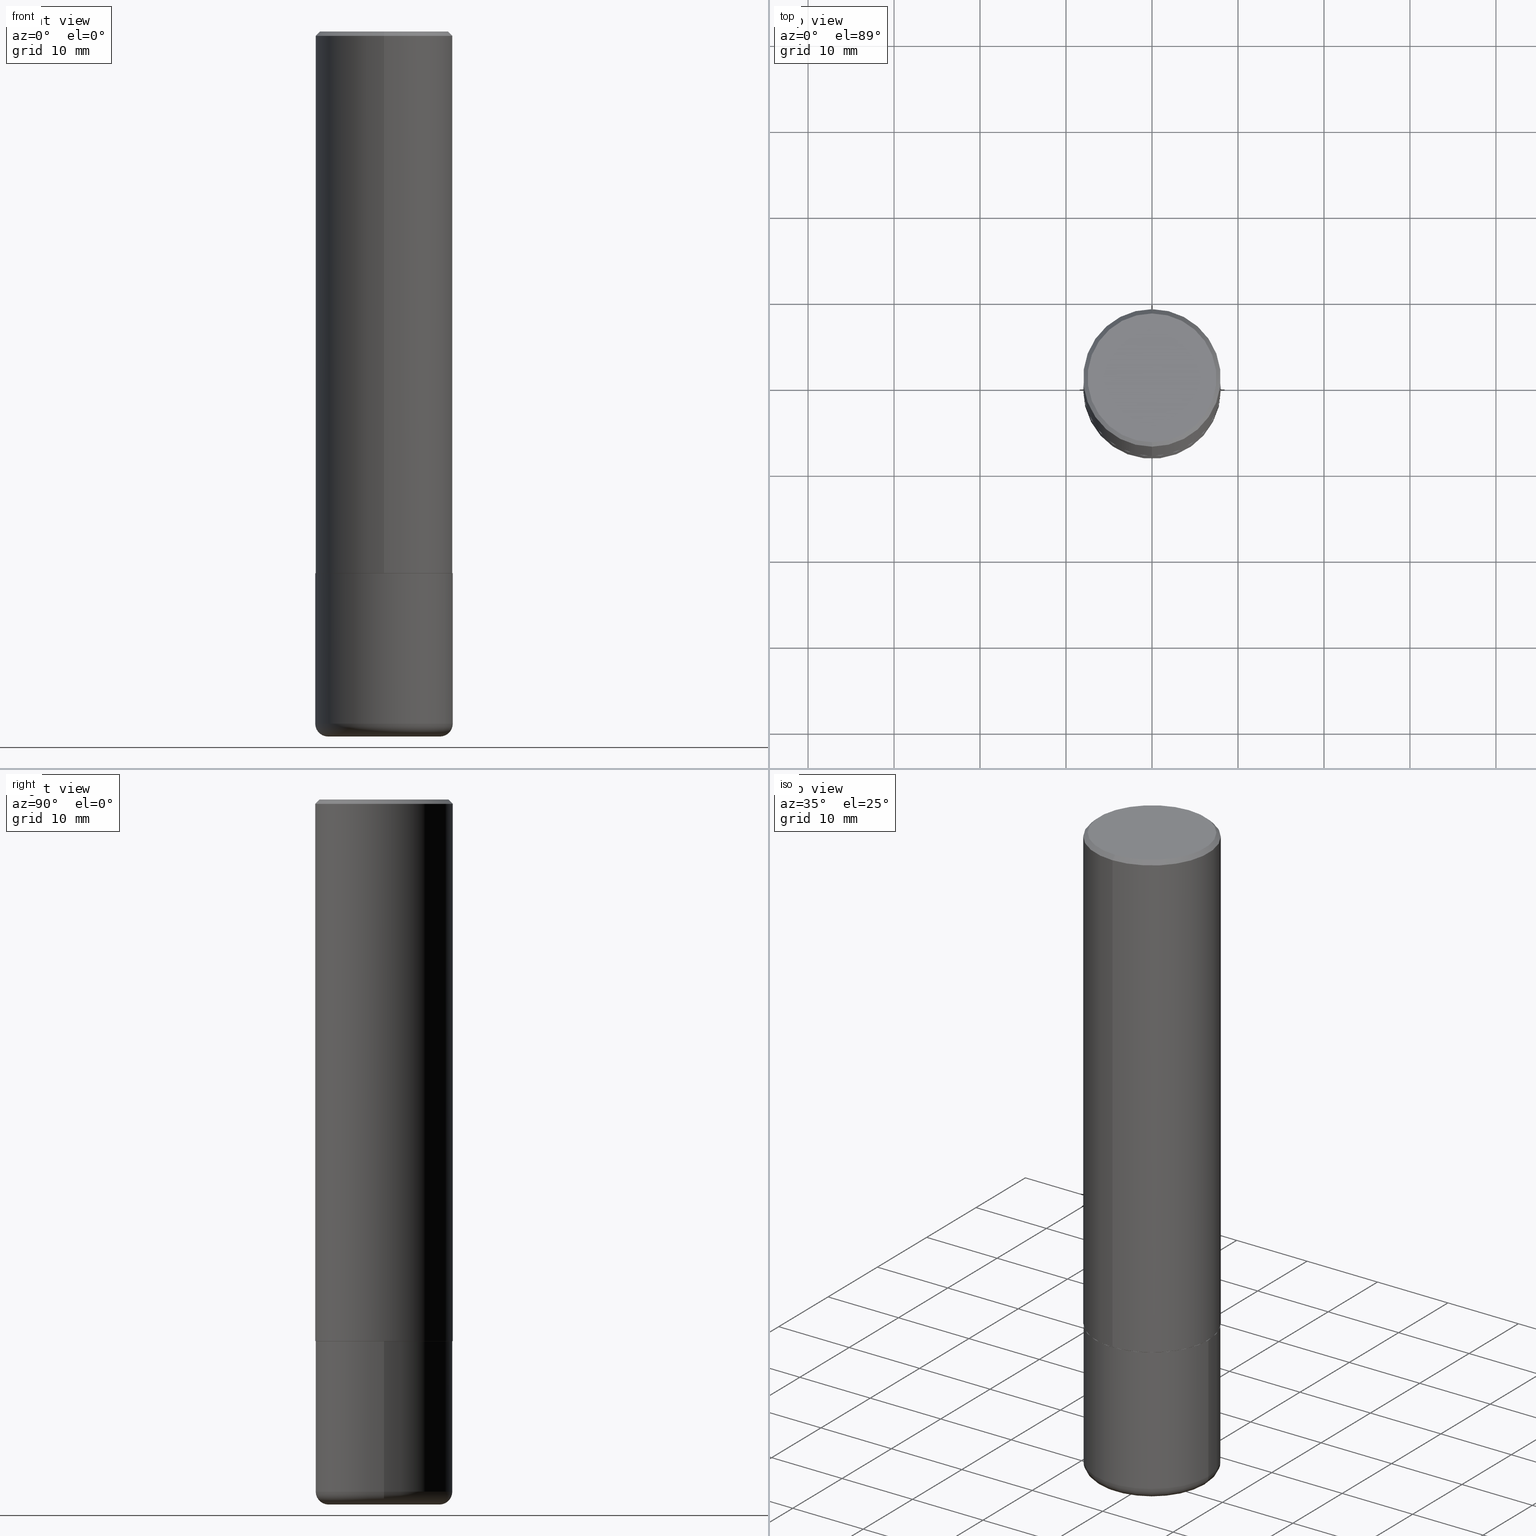
[diagram: canonical four-view strip — front | top / right | iso, engineering-drawing reading convention]
A machine part, canonical four-view strip (front | top / right | iso — engineering-drawing reading convention). The complete STEP part file that produces these views, byte-faithful:
ISO-10303-21;
HEADER;
FILE_DESCRIPTION (( 'STEP AP203' ),
    '1' );
FILE_NAME ('48070.STEP',
    '2024-03-06T19:52:01',
    ( '' ),
    ( '' ),
    'SwSTEP 2.0',
    'SolidWorks 2023',
    '' );
FILE_SCHEMA (( 'CONFIG_CONTROL_DESIGN' ));
ENDSEC;

DATA;
#1 = VERTEX_POINT ( 'NONE', #388 ) ;
#2 = DIRECTION ( 'NONE',  ( 1.000000000000000000, -6.982962677686265133E-15, 4.883557194083112340E-29 ) ) ;
#3 = DIRECTION ( 'NONE',  ( 2.441634677925747084E-29, -3.496972028735619789E-15, -1.000000000000000000 ) ) ;
#4 = ORIENTED_EDGE ( 'NONE', *, *, #270, .T. ) ;
#5 = CARTESIAN_POINT ( 'NONE',  ( 4.883269355851518516E-31, -6.993944057471272858E-17, -0.02000000000000009756 ) ) ;
#6 = ORIENTED_EDGE ( 'NONE', *, *, #68, .F. ) ;
#7 = DIRECTION ( 'NONE',  ( -2.441634677925747084E-29, 3.496972028735619789E-15, 1.000000000000000000 ) ) ;
#8 = VECTOR ( 'NONE', #274, 39.37007874015748143 ) ;
#9 = ADVANCED_FACE ( 'NONE', ( #234 ), #316, .T. ) ;
#10 =( NAMED_UNIT ( * ) SI_UNIT ( $, .STERADIAN. ) SOLID_ANGLE_UNIT ( ) );
#11 = ORIENTED_EDGE ( 'NONE', *, *, #213, .F. ) ;
#12 = DIRECTION ( 'NONE',  ( 1.000000000000000000, -6.982962677686271444E-15, 0.000000000000000000 ) ) ;
#13 = LINE ( 'NONE', #392, #362 ) ;
#14 = CARTESIAN_POINT ( 'NONE',  ( 7.894706947007477118E-29, -1.127154920618732880E-14, -3.228299999999999947 ) ) ;
#15 = ORIENTED_EDGE ( 'NONE', *, *, #255, .T. ) ;
#16 = AXIS2_PLACEMENT_3D ( 'NONE', #201, #170, #353 ) ;
#17 = PRODUCT_DEFINITION_SHAPE ( 'NONE', 'NONE',  #220 ) ;
#18 = CALENDAR_DATE ( 2024, 6, 3 ) ;
#19 = FACE_OUTER_BOUND ( 'NONE', #309, .T. ) ;
#20 = FACE_OUTER_BOUND ( 'NONE', #307, .T. ) ;
#21 = APPROVAL_DATE_TIME ( #55, #298 ) ;
#22 = CARTESIAN_POINT ( 'NONE',  ( 0.3149500000000000077, -1.085920526006994521E-14, -2.480300000000000171 ) ) ;
#23 = ADVANCED_FACE ( 'NONE', ( #20 ), #182, .T. ) ;
#24 = ORIENTED_EDGE ( 'NONE', *, *, #128, .T. ) ;
#25 = PERSON_AND_ORGANIZATION ( #321, #399 ) ;
#26 = VECTOR ( 'NONE', #305, 39.37007874015748854 ) ;
#27 = APPROVAL_PERSON_ORGANIZATION ( #380, #147, #221 ) ;
#28 = EDGE_CURVE ( 'NONE', #183, #1, #290, .T. ) ;
#29 = AXIS2_PLACEMENT_3D ( 'NONE', #254, #384, #173 ) ;
#30 = ORIENTED_EDGE ( 'NONE', *, *, #239, .T. ) ;
#31 = DIRECTION ( 'NONE',  ( 1.000000000000000000, -6.982962677686269866E-15, 0.000000000000000000 ) ) ;
#32 = CARTESIAN_POINT ( 'NONE',  ( 1.315337494998664914E-45, -1.883860214610447732E-31, -5.387118338752009983E-17 ) ) ;
#33 = ORIENTED_EDGE ( 'NONE', *, *, #120, .F. ) ;
#34 = CC_DESIGN_PERSON_AND_ORGANIZATION_ASSIGNMENT ( #277, #126, ( #365 ) ) ;
#35 = ORIENTED_EDGE ( 'NONE', *, *, #289, .F. ) ;
#36 = AXIS2_PLACEMENT_3D ( 'NONE', #371, #188, #310 ) ;
#37 = LOCAL_TIME ( 14, 52, 1.000000000000000000, #288 ) ;
#38 = DIRECTION ( 'NONE',  ( 6.982962677686265922E-15, 1.000000000000000000, -3.496670018878889100E-15 ) ) ;
#39 = ORIENTED_EDGE ( 'NONE', *, *, #83, .F. ) ;
#40 = LINE ( 'NONE', #198, #135 ) ;
#41 = ORIENTED_EDGE ( 'NONE', *, *, #239, .F. ) ;
#42 = DIRECTION ( 'NONE',  ( -6.982962677686264344E-15, -1.000000000000000000, 3.496972028735619395E-15 ) ) ;
#43 = ADVANCED_FACE ( 'NONE', ( #357 ), #109, .T. ) ;
#44 = FACE_OUTER_BOUND ( 'NONE', #335, .T. ) ;
#45 = AXIS2_PLACEMENT_3D ( 'NONE', #284, #160, #132 ) ;
#46 = APPROVAL_PERSON_ORGANIZATION ( #318, #298, #77 ) ;
#47 = MECHANICAL_CONTEXT ( 'NONE', #347, 'mechanical' ) ;
#48 = CALENDAR_DATE ( 2024, 6, 3 ) ;
#49 = CC_DESIGN_PERSON_AND_ORGANIZATION_ASSIGNMENT ( #396, #361, ( #220 ) ) ;
#50 = FACE_OUTER_BOUND ( 'NONE', #264, .T. ) ;
#51 = CARTESIAN_POINT ( 'NONE',  ( 6.053544856981305662E-29, -8.670042750844224214E-15, -2.479300000000000725 ) ) ;
#52 = SHAPE_DEFINITION_REPRESENTATION ( #17, #150 ) ;
#53 = ADVANCED_FACE ( 'NONE', ( #19 ), #235, .T. ) ;
#54 = ORIENTED_EDGE ( 'NONE', *, *, #177, .T. ) ;
#55 = DATE_AND_TIME ( #48, #37 ) ;
#56 = AXIS2_PLACEMENT_3D ( 'NONE', #14, #398, #113 ) ;
#57 = ADVANCED_FACE ( 'NONE', ( #74 ), #138, .T. ) ;
#58 = ORIENTED_EDGE ( 'NONE', *, *, #304, .F. ) ;
#59 = AXIS2_PLACEMENT_3D ( 'NONE', #148, #179, #203 ) ;
#60 = ORIENTED_EDGE ( 'NONE', *, *, #154, .T. ) ;
#61 = ADVANCED_FACE ( 'NONE', ( #102 ), #75, .F. ) ;
#62 = FACE_OUTER_BOUND ( 'NONE', #383, .T. ) ;
#63 = DIRECTION ( 'NONE',  ( 1.000000000000000000, -6.982962677686264344E-15, 0.000000000000000000 ) ) ;
#64 = AXIS2_PLACEMENT_3D ( 'NONE', #351, #333, #406 ) ;
#65 = DIRECTION ( 'NONE',  ( -2.441634677925747084E-29, 3.496972028735619789E-15, 1.000000000000000000 ) ) ;
#66 = AXIS2_PLACEMENT_3D ( 'NONE', #67, #3, #38 ) ;
#67 = CARTESIAN_POINT ( 'NONE',  ( 4.883269355851518516E-31, -6.993944057471272858E-17, -0.02000000000000009756 ) ) ;
#68 = EDGE_CURVE ( 'NONE', #219, #183, #91, .T. ) ;
#69 = ORIENTED_EDGE ( 'NONE', *, *, #68, .T. ) ;
#70 = DIRECTION ( 'NONE',  ( -6.982962677686265922E-15, -1.000000000000000000, 3.496972028735619395E-15 ) ) ;
#71 = CARTESIAN_POINT ( 'NONE',  ( -2.192301132659542720E-15, -0.3139500000000086666, -2.480299999999999727 ) ) ;
#72 = AXIS2_PLACEMENT_3D ( 'NONE', #142, #400, #185 ) ;
#73 = CIRCLE ( 'NONE', #295, 0.3149500000000000077 ) ;
#74 = FACE_OUTER_BOUND ( 'NONE', #358, .T. ) ;
#75 = PLANE ( 'NONE',  #29 ) ;
#76 = CC_DESIGN_DATE_AND_TIME_ASSIGNMENT ( #402, #108, ( #220 ) ) ;
#77 = APPROVAL_ROLE ( '' ) ;
#78 = DIRECTION ( 'NONE',  ( 1.000000000000000000, -6.982962677686266711E-15, 4.876176775795936353E-29 ) ) ;
#79 = ORIENTED_EDGE ( 'NONE', *, *, #128, .F. ) ;
#80 = CARTESIAN_POINT ( 'NONE',  ( -0.3149499999999999522, -8.827348312785260842E-15, -3.169199999999999573 ) ) ;
#81 = LOCAL_TIME ( 14, 52, 1.000000000000000000, #190 ) ;
#82 = COORDINATED_UNIVERSAL_TIME_OFFSET ( 5, 0, .BEHIND. ) ;
#83 = EDGE_CURVE ( 'NONE', #252, #408, #247, .T. ) ;
#84 = DESIGN_CONTEXT ( 'detailed design', #175, 'design' ) ;
#85 = DIRECTION ( 'NONE',  ( -2.441634677925747084E-29, 3.496972028735619789E-15, 1.000000000000000000 ) ) ;
#86 = FACE_OUTER_BOUND ( 'NONE', #246, .T. ) ;
#87 = DIRECTION ( 'NONE',  ( -2.441634677925747084E-29, 3.496972028735619789E-15, 1.000000000000000000 ) ) ;
#88 = ORIENTED_EDGE ( 'NONE', *, *, #390, .F. ) ;
#89 = CARTESIAN_POINT ( 'NONE',  ( -2.192301132659542720E-15, -0.3139500000000086666, -2.480299999999999727 ) ) ;
#90 = ORIENTED_EDGE ( 'NONE', *, *, #204, .F. ) ;
#91 = CIRCLE ( 'NONE', #331, 0.3149499999999999522 ) ;
#92 = EDGE_CURVE ( 'NONE', #334, #337, #152, .T. ) ;
#93 = LINE ( 'NONE', #339, #118 ) ;
#94 = CARTESIAN_POINT ( 'NONE',  ( -2.199284095337230706E-15, -0.3149500000000089450, -2.479299999999999393 ) ) ;
#95 = ORIENTED_EDGE ( 'NONE', *, *, #255, .F. ) ;
#96 = CC_DESIGN_PERSON_AND_ORGANIZATION_ASSIGNMENT ( #241, #144, ( #276 ) ) ;
#97 = FACE_OUTER_BOUND ( 'NONE', #370, .T. ) ;
#98 = CARTESIAN_POINT ( 'NONE',  ( 2.234301632597695829E-15, 0.3139499999999913471, -2.480300000000001948 ) ) ;
#99 = CIRCLE ( 'NONE', #124, 0.3149500000000000077 ) ;
#100 = DIRECTION ( 'NONE',  ( -2.445468806185136597E-29, 3.491481338843145583E-15, 1.000000000000000000 ) ) ;
#101 = CARTESIAN_POINT ( 'NONE',  ( 4.883269355851518516E-31, -6.993944057471272858E-17, -0.02000000000000009756 ) ) ;
#102 = FACE_OUTER_BOUND ( 'NONE', #300, .T. ) ;
#103 = AXIS2_PLACEMENT_3D ( 'NONE', #404, #87, #414 ) ;
#104 = APPROVAL_ROLE ( '' ) ;
#105 = CARTESIAN_POINT ( 'NONE',  ( 6.055986491659231702E-29, -8.673539722872959805E-15, -2.480300000000001059 ) ) ;
#106 = CALENDAR_DATE ( 2024, 6, 3 ) ;
#107 = CARTESIAN_POINT ( 'NONE',  ( -0.3149500000000000077, 2.237854346276435590E-15, -1.549218606675782676E-29 ) ) ;
#108 = DATE_TIME_ROLE ( 'creation_date' ) ;
#109 = CYLINDRICAL_SURFACE ( 'NONE', #207, 0.3149500000000000077 ) ;
#110 = CC_DESIGN_APPROVAL ( #298, ( #276 ) ) ;
#111 = CALENDAR_DATE ( 2024, 6, 3 ) ;
#112 = DATE_AND_TIME ( #18, #376 ) ;
#113 = DIRECTION ( 'NONE',  ( -1.000000000000000000, 6.982962677686265922E-15, -4.876176775795935793E-29 ) ) ;
#114 = VERTEX_POINT ( 'NONE', #186 ) ;
#115 = CC_DESIGN_DATE_AND_TIME_ASSIGNMENT ( #317, #322, ( #276 ) ) ;
#116 = DIRECTION ( 'NONE',  ( -1.000000000000000000, 6.982962677686265922E-15, -4.876176775795935793E-29 ) ) ;
#117 = ORIENTED_EDGE ( 'NONE', *, *, #213, .T. ) ;
#118 = VECTOR ( 'NONE', #211, 39.37007874015748143 ) ;
#119 = CARTESIAN_POINT ( 'NONE',  ( 2.237854346276435985E-15, 0.3149500000000001743, -1.101371340450283917E-15 ) ) ;
#120 = EDGE_CURVE ( 'NONE', #303, #1, #99, .T. ) ;
#121 = ORIENTED_EDGE ( 'NONE', *, *, #273, .F. ) ;
#122 = ORIENTED_EDGE ( 'NONE', *, *, #405, .T. ) ;
#123 = EDGE_LOOP ( 'NONE', ( #379, #117, #88, #41 ) ) ;
#124 = AXIS2_PLACEMENT_3D ( 'NONE', #184, #149, #31 ) ;
#125 = DIRECTION ( 'NONE',  ( 5.024295867787889629E-15, 0.7071067811865257013, 0.7071067811865691111 ) ) ;
#126 = PERSON_AND_ORGANIZATION_ROLE ( 'design_owner' ) ;
#127 = DIRECTION ( 'NONE',  ( -6.982962677686265922E-15, -1.000000000000000000, 3.496670018878889100E-15 ) ) ;
#128 = EDGE_CURVE ( 'NONE', #183, #219, #368, .T. ) ;
#129 = DIRECTION ( 'NONE',  ( -2.445468806185136597E-29, 3.491481338843145583E-15, 1.000000000000000000 ) ) ;
#130 = ORIENTED_EDGE ( 'NONE', *, *, #372, .F. ) ;
#131 = CARTESIAN_POINT ( 'NONE',  ( -2.199284095337290265E-15, -0.3149500000000001743, 1.101371340450283917E-15 ) ) ;
#132 = DIRECTION ( 'NONE',  ( -1.000000000000000000, 7.105427357601001859E-15, 0.000000000000000000 ) ) ;
#133 = ORIENTED_EDGE ( 'NONE', *, *, #352, .T. ) ;
#134 = AXIS2_PLACEMENT_3D ( 'NONE', #105, #395, #403 ) ;
#135 = VECTOR ( 'NONE', #279, 39.37007874015748143 ) ;
#136 = LENGTH_MEASURE_WITH_UNIT ( LENGTH_MEASURE( 0.02539999999999999897 ), #312 );
#137 = ADVANCED_FACE ( 'NONE', ( #86 ), #306, .T. ) ;
#138 = CONICAL_SURFACE ( 'NONE', #16, 0.3139500000000000068, 0.7853981633974141952 ) ;
#139 = VECTOR ( 'NONE', #174, 39.37007874015748143 ) ;
#140 = ORIENTED_EDGE ( 'NONE', *, *, #289, .T. ) ;
#141 = PERSON_AND_ORGANIZATION ( #321, #399 ) ;
#142 = CARTESIAN_POINT ( 'NONE',  ( 6.053544856981305662E-29, -8.670042750844224214E-15, -2.479300000000000725 ) ) ;
#143 = ORIENTED_EDGE ( 'NONE', *, *, #273, .T. ) ;
#144 = PERSON_AND_ORGANIZATION_ROLE ( 'classification_officer' ) ;
#145 = DIRECTION ( 'NONE',  ( -6.982962677686265922E-15, -1.000000000000000000, 3.469564049740290009E-15 ) ) ;
#146 = FACE_OUTER_BOUND ( 'NONE', #271, .T. ) ;
#147 = APPROVAL ( #342, 'UNSPECIFIED' ) ;
#148 = CARTESIAN_POINT ( 'NONE',  ( 1.315337494998664914E-45, -1.883860214610447732E-31, -5.387118338752009983E-17 ) ) ;
#149 = DIRECTION ( 'NONE',  ( -2.445468806185136597E-29, 3.491481338843145583E-15, 1.000000000000000000 ) ) ;
#150 = ADVANCED_BREP_SHAPE_REPRESENTATION ( '48070', ( #366, #244, #257 ), #355 ) ;
#151 = FACE_OUTER_BOUND ( 'NONE', #123, .T. ) ;
#152 = CIRCLE ( 'NONE', #64, 0.2558500000000000218 ) ;
#153 = AXIS2_PLACEMENT_3D ( 'NONE', #389, #314, #350 ) ;
#154 = EDGE_CURVE ( 'NONE', #252, #313, #272, .T. ) ;
#155 = VERTEX_POINT ( 'NONE', #249 ) ;
#156 = PLANE ( 'NONE',  #176 ) ;
#157 = DIRECTION ( 'NONE',  ( -2.445468806185136597E-29, 3.491481338843145583E-15, 1.000000000000000000 ) ) ;
#158 = DIRECTION ( 'NONE',  ( 1.000000000000000000, -6.982962677686266711E-15, 4.876176775795936353E-29 ) ) ;
#159 = CIRCLE ( 'NONE', #171, 0.2949500000000001010 ) ;
#160 = DIRECTION ( 'NONE',  ( 7.105427357601001859E-15, 1.000000000000000000, -3.491481338843145583E-15 ) ) ;
#161 = ORIENTED_EDGE ( 'NONE', *, *, #92, .F. ) ;
#162 = CARTESIAN_POINT ( 'NONE',  ( 6.055986491659231702E-29, -8.673539722872959805E-15, -2.480300000000001059 ) ) ;
#163 = DIRECTION ( 'NONE',  ( -2.441634677925747084E-29, 3.496972028735619789E-15, 1.000000000000000000 ) ) ;
#164 = TOROIDAL_SURFACE ( 'NONE', #397, 0.2558500000000000218, 0.05909999999999992343 ) ;
#165 = ORIENTED_EDGE ( 'NONE', *, *, #181, .T. ) ;
#166 = CIRCLE ( 'NONE', #248, 0.3149500000000000077 ) ;
#167 = ADVANCED_FACE ( 'NONE', ( #325 ), #180, .F. ) ;
#168 =( NAMED_UNIT ( * ) PLANE_ANGLE_UNIT ( ) SI_UNIT ( $, .RADIAN. ) );
#169 = DIRECTION ( 'NONE',  ( -2.445468806185136597E-29, 3.491481338843145583E-15, 1.000000000000000000 ) ) ;
#170 = DIRECTION ( 'NONE',  ( -2.441634677925747084E-29, 3.496972028735619789E-15, 1.000000000000000000 ) ) ;
#171 = AXIS2_PLACEMENT_3D ( 'NONE', #32, #410, #308 ) ;
#172 = APPROVAL_STATUS ( 'not_yet_approved' ) ;
#173 = DIRECTION ( 'NONE',  ( 6.982962677686265922E-15, 1.000000000000000000, -3.496972028735619395E-15 ) ) ;
#174 = DIRECTION ( 'NONE',  ( -2.445468806185136877E-29, 3.491481338843145188E-15, 1.000000000000000000 ) ) ;
#175 = APPLICATION_CONTEXT ( 'configuration controlled 3d designs of mechanical parts and assemblies' ) ;
#176 = AXIS2_PLACEMENT_3D ( 'NONE', #212, #205, #70 ) ;
#177 = EDGE_CURVE ( 'NONE', #337, #334, #292, .T. ) ;
#178 = LOCAL_TIME ( 14, 52, 1.000000000000000000, #260 ) ;
#179 = DIRECTION ( 'NONE',  ( -2.441634677925747084E-29, 3.496972028735619789E-15, 1.000000000000000000 ) ) ;
#180 = PLANE ( 'NONE',  #275 ) ;
#181 = EDGE_CURVE ( 'NONE', #114, #256, #93, .T. ) ;
#182 = CONICAL_SURFACE ( 'NONE', #134, 0.3139500000000000068, 0.7853981633974141952 ) ;
#183 = VERTEX_POINT ( 'NONE', #80 ) ;
#184 = CARTESIAN_POINT ( 'NONE',  ( 6.065496279980994755E-29, -8.659921164732655335E-15, -2.480300000000000171 ) ) ;
#185 = DIRECTION ( 'NONE',  ( -6.982962677686265922E-15, -1.000000000000000000, 3.469564049740290009E-15 ) ) ;
#186 = CARTESIAN_POINT ( 'NONE',  ( 2.129454468560427362E-15, 0.2949500000000001010, -1.085303083263091523E-15 ) ) ;
#187 = ORIENTED_EDGE ( 'NONE', *, *, #372, .T. ) ;
#188 = DIRECTION ( 'NONE',  ( -2.445468806185136597E-29, 3.491481338843145583E-15, 1.000000000000000000 ) ) ;
#189 = VECTOR ( 'NONE', #125, 39.37007874015748854 ) ;
#190 = COORDINATED_UNIVERSAL_TIME_OFFSET ( 5, 0, .BEHIND. ) ;
#191 = CONICAL_SURFACE ( 'NONE', #66, 0.3149500000000000077, 0.7853981633974452814 ) ;
#192 = DIRECTION ( 'NONE',  ( -2.441634677925747084E-29, 3.496972028735619789E-15, 1.000000000000000000 ) ) ;
#193 = CARTESIAN_POINT ( 'NONE',  ( 7.750179740561934664E-29, -1.106520265906169683E-14, -3.169200000000000017 ) ) ;
#194 = DIRECTION ( 'NONE',  ( 1.000000000000000000, -6.982962677686269866E-15, 0.000000000000000000 ) ) ;
#195 = EDGE_LOOP ( 'NONE', ( #378, #187 ) ) ;
#196 = CARTESIAN_POINT ( 'NONE',  ( -0.2558500000000000218, -9.140486964765185399E-15, -3.228299999999999947 ) ) ;
#197 = ADVANCED_FACE ( 'NONE', ( #50 ), #164, .T. ) ;
#198 = CARTESIAN_POINT ( 'NONE',  ( -2.160713844398143363E-15, -0.3149500000000000632, -0.01999999999999899775 ) ) ;
#199 = AXIS2_PLACEMENT_3D ( 'NONE', #336, #7, #127 ) ;
#200 = ORIENTED_EDGE ( 'NONE', *, *, #83, .T. ) ;
#201 = CARTESIAN_POINT ( 'NONE',  ( 6.055986491659231702E-29, -8.673539722872959805E-15, -2.480300000000001059 ) ) ;
#202 = DATE_AND_TIME ( #111, #81 ) ;
#203 = DIRECTION ( 'NONE',  ( -6.982962677686265922E-15, -1.000000000000000000, 3.496972028735619395E-15 ) ) ;
#204 = EDGE_CURVE ( 'NONE', #219, #303, #13, .T. ) ;
#205 = DIRECTION ( 'NONE',  ( -2.441634677925746804E-29, 3.496972028735619395E-15, 1.000000000000000000 ) ) ;
#206 = SECURITY_CLASSIFICATION_LEVEL ( 'unclassified' ) ;
#207 = AXIS2_PLACEMENT_3D ( 'NONE', #293, #261, #78 ) ;
#208 = CARTESIAN_POINT ( 'NONE',  ( 0.3149499999999999522, -1.326448675439898354E-14, -3.169199999999999573 ) ) ;
#209 = APPROVAL_DATE_TIME ( #202, #147 ) ;
#210 = PERSON_AND_ORGANIZATION_ROLE ( 'creator' ) ;
#211 = DIRECTION ( 'NONE',  ( 4.937700262164532265E-15, 0.7071067811865429098, -0.7071067811865521247 ) ) ;
#212 = CARTESIAN_POINT ( 'NONE',  ( 6.055986491659230581E-29, -8.673539722872958227E-15, -2.480300000000000171 ) ) ;
#213 = EDGE_CURVE ( 'NONE', #313, #256, #269, .T. ) ;
#214 = ORIENTED_EDGE ( 'NONE', *, *, #28, .T. ) ;
#215 = CARTESIAN_POINT ( 'NONE',  ( 0.000000000000000000, 0.000000000000000000, 0.000000000000000000 ) ) ;
#216 = CARTESIAN_POINT ( 'NONE',  ( 2.230748918918894930E-15, 0.3139499999999913471, -2.480300000000001948 ) ) ;
#217 = TOROIDAL_SURFACE ( 'NONE', #385, 0.2558500000000000218, 0.05909999999999992343 ) ;
#218 = PRODUCT_DEFINITION_FORMATION_WITH_SPECIFIED_SOURCE ( 'ANY', '', #365, .NOT_KNOWN. ) ;
#219 = VERTEX_POINT ( 'NONE', #208 ) ;
#220 = PRODUCT_DEFINITION ( 'UNKNOWN', '', #218, #84 ) ;
#221 = APPROVAL_ROLE ( '' ) ;
#222 = CIRCLE ( 'NONE', #45, 0.05909999999999992343 ) ;
#223 = DIRECTION ( 'NONE',  ( 2.441634677925747084E-29, -3.496972028735619789E-15, -1.000000000000000000 ) ) ;
#224 = EDGE_CURVE ( 'NONE', #313, #407, #323, .T. ) ;
#225 = CARTESIAN_POINT ( 'NONE',  ( -2.160713844398143363E-15, -0.3149500000000000632, -0.01999999999999899775 ) ) ;
#226 = DIRECTION ( 'NONE',  ( -6.982962677686266711E-15, -1.000000000000000000, 3.480615376543096919E-15 ) ) ;
#227 = CARTESIAN_POINT ( 'NONE',  ( 0.000000000000000000, 0.000000000000000000, 0.000000000000000000 ) ) ;
#228 = DIRECTION ( 'NONE',  ( -2.445468806185136877E-29, 3.491481338843145188E-15, 1.000000000000000000 ) ) ;
#229 = CLOSED_SHELL ( 'NONE', ( #57, #281, #341, #381, #137, #23, #311, #61 ) ) ;
#230 = COORDINATED_UNIVERSAL_TIME_OFFSET ( 5, 0, .BEHIND. ) ;
#231 = PRODUCT_RELATED_PRODUCT_CATEGORY ( 'detail', '', ( #365 ) ) ;
#232 = CALENDAR_DATE ( 2024, 6, 3 ) ;
#233 = CARTESIAN_POINT ( 'NONE',  ( 7.750179740561934664E-29, -1.106520265906169683E-14, -3.169200000000000017 ) ) ;
#234 = FACE_OUTER_BOUND ( 'NONE', #411, .T. ) ;
#235 = CYLINDRICAL_SURFACE ( 'NONE', #242, 0.3149500000000000077 ) ;
#236 = CLOSED_SHELL ( 'NONE', ( #53, #265, #167, #43, #197, #9 ) ) ;
#237 = UNCERTAINTY_MEASURE_WITH_UNIT (LENGTH_MEASURE( 1.000000000000000082E-05 ), #251, 'distance_accuracy_value', 'NONE');
#238 = PERSON_AND_ORGANIZATION_ROLE ( 'design_supplier' ) ;
#239 = EDGE_CURVE ( 'NONE', #407, #415, #253, .T. ) ;
#240 = ORIENTED_EDGE ( 'NONE', *, *, #390, .T. ) ;
#241 = PERSON_AND_ORGANIZATION ( #321, #399 ) ;
#242 = AXIS2_PLACEMENT_3D ( 'NONE', #348, #100, #158 ) ;
#243 = EDGE_CURVE ( 'NONE', #256, #415, #375, .T. ) ;
#244 = MANIFOLD_SOLID_BREP ( 'Body-Move/Copy2[2]', #229 ) ;
#245 = ORIENTED_EDGE ( 'NONE', *, *, #352, .F. ) ;
#246 = EDGE_LOOP ( 'NONE', ( #11, #416, #30, #294 ) ) ;
#247 = CIRCLE ( 'NONE', #262, 0.3139500000000000068 ) ;
#248 = AXIS2_PLACEMENT_3D ( 'NONE', #345, #129, #194 ) ;
#249 = CARTESIAN_POINT ( 'NONE',  ( -2.092108864420428426E-15, -0.2949500000000001010, 9.775607164880511260E-16 ) ) ;
#250 = APPLICATION_PROTOCOL_DEFINITION ( 'international standard', 'config_control_design', 1994, #175 ) ;
#251 =( CONVERSION_BASED_UNIT ( 'INCH', #136 ) LENGTH_UNIT ( ) NAMED_UNIT ( #360 ) );
#252 = VERTEX_POINT ( 'NONE', #98 ) ;
#253 = LINE ( 'NONE', #131, #8 ) ;
#254 = CARTESIAN_POINT ( 'NONE',  ( 2.059624841783564852E-15, 0.2949500000000001010, -1.058367491569331424E-15 ) ) ;
#255 = EDGE_CURVE ( 'NONE', #155, #114, #319, .T. ) ;
#256 = VERTEX_POINT ( 'NONE', #328 ) ;
#257 = AXIS2_PLACEMENT_3D ( 'NONE', #227, #354, #259 ) ;
#258 = DIRECTION ( 'NONE',  ( 6.982962677686265922E-15, 1.000000000000000000, -3.496670018878889100E-15 ) ) ;
#259 = DIRECTION ( 'NONE',  ( 1.000000000000000000, 0.000000000000000000, 0.000000000000000000 ) ) ;
#260 = COORDINATED_UNIVERSAL_TIME_OFFSET ( 5, 0, .BEHIND. ) ;
#261 = DIRECTION ( 'NONE',  ( -2.445468806185136597E-29, 3.491481338843145583E-15, 1.000000000000000000 ) ) ;
#262 = AXIS2_PLACEMENT_3D ( 'NONE', #162, #192, #226 ) ;
#263 = LOCAL_TIME ( 14, 52, 1.000000000000000000, #82 ) ;
#264 = EDGE_LOOP ( 'NONE', ( #35, #54, #401, #79 ) ) ;
#265 = ADVANCED_FACE ( 'NONE', ( #62 ), #217, .T. ) ;
#266 = AXIS2_PLACEMENT_3D ( 'NONE', #215, #65, #42 ) ;
#267 = ORIENTED_EDGE ( 'NONE', *, *, #270, .F. ) ;
#268 = ORIENTED_EDGE ( 'NONE', *, *, #224, .F. ) ;
#269 = LINE ( 'NONE', #119, #301 ) ;
#270 = EDGE_CURVE ( 'NONE', #408, #407, #278, .T. ) ;
#271 = EDGE_LOOP ( 'NONE', ( #359, #39 ) ) ;
#272 = LINE ( 'NONE', #216, #189 ) ;
#273 = EDGE_CURVE ( 'NONE', #114, #155, #159, .T. ) ;
#274 = DIRECTION ( 'NONE',  ( -2.441634677925747084E-29, 3.496972028735619395E-15, 1.000000000000000000 ) ) ;
#275 = AXIS2_PLACEMENT_3D ( 'NONE', #297, #299, #116 ) ;
#276 = SECURITY_CLASSIFICATION ( '', '', #206 ) ;
#277 = PERSON_AND_ORGANIZATION ( #321, #399 ) ;
#278 = LINE ( 'NONE', #89, #26 ) ;
#279 = DIRECTION ( 'NONE',  ( -4.851104656540949287E-15, -0.7071067811865477948, -0.7071067811865472397 ) ) ;
#280 = ORIENTED_EDGE ( 'NONE', *, *, #154, .F. ) ;
#281 = ADVANCED_FACE ( 'NONE', ( #151 ), #374, .T. ) ;
#282 = DIRECTION ( 'NONE',  ( -2.445468806185136597E-29, 3.491481338843145583E-15, 1.000000000000000000 ) ) ;
#283 = CARTESIAN_POINT ( 'NONE',  ( 2.237854346276467145E-15, 0.3149499999999916255, -2.479300000000001614 ) ) ;
#284 = CARTESIAN_POINT ( 'NONE',  ( -0.2558500000000000218, -9.247279069619481135E-15, -3.169200000000000017 ) ) ;
#285 = ORIENTED_EDGE ( 'NONE', *, *, #329, .F. ) ;
#286 = ORIENTED_EDGE ( 'NONE', *, *, #177, .F. ) ;
#287 = DIRECTION ( 'NONE',  ( 1.000000000000000000, -6.982962677686265133E-15, 4.883557194083112340E-29 ) ) ;
#288 = COORDINATED_UNIVERSAL_TIME_OFFSET ( 5, 0, .BEHIND. ) ;
#289 = EDGE_CURVE ( 'NONE', #337, #183, #222, .T. ) ;
#290 = LINE ( 'NONE', #107, #139 ) ;
#291 = ORIENTED_EDGE ( 'NONE', *, *, #204, .T. ) ;
#292 = CIRCLE ( 'NONE', #36, 0.2558500000000000218 ) ;
#293 = CARTESIAN_POINT ( 'NONE',  ( 0.000000000000000000, 0.000000000000000000, 0.000000000000000000 ) ) ;
#294 = ORIENTED_EDGE ( 'NONE', *, *, #243, .F. ) ;
#295 = AXIS2_PLACEMENT_3D ( 'NONE', #101, #163, #417 ) ;
#296 = EDGE_LOOP ( 'NONE', ( #338, #24, #291, #130 ) ) ;
#297 = CARTESIAN_POINT ( 'NONE',  ( 6.065496279980994755E-29, -8.659921164732655335E-15, -2.480300000000000171 ) ) ;
#298 = APPROVAL ( #356, 'UNSPECIFIED' ) ;
#299 = DIRECTION ( 'NONE',  ( 2.438088387897960049E-29, -3.491481338843145188E-15, -1.000000000000000000 ) ) ;
#300 = EDGE_LOOP ( 'NONE', ( #143, #15 ) ) ;
#301 = VECTOR ( 'NONE', #340, 39.37007874015748143 ) ;
#302 = APPROVAL_PERSON_ORGANIZATION ( #25, #418, #104 ) ;
#303 = VERTEX_POINT ( 'NONE', #22 ) ;
#304 = EDGE_CURVE ( 'NONE', #407, #313, #315, .T. ) ;
#305 = DIRECTION ( 'NONE',  ( -4.937700262164378437E-15, -0.7071067811865208164, 0.7071067811865739960 ) ) ;
#306 = CYLINDRICAL_SURFACE ( 'NONE', #103, 0.3149500000000001743 ) ;
#307 = EDGE_LOOP ( 'NONE', ( #280, #200, #4, #268 ) ) ;
#308 = DIRECTION ( 'NONE',  ( -6.982962677686265922E-15, -1.000000000000000000, 3.496972028735619395E-15 ) ) ;
#309 = EDGE_LOOP ( 'NONE', ( #69, #214, #33, #90 ) ) ;
#310 = DIRECTION ( 'NONE',  ( 1.000000000000000000, -6.982962677686263555E-15, 0.000000000000000000 ) ) ;
#311 = ADVANCED_FACE ( 'NONE', ( #146 ), #156, .F. ) ;
#312 =( LENGTH_UNIT ( ) NAMED_UNIT ( * ) SI_UNIT ( $, .METRE. ) );
#313 = VERTEX_POINT ( 'NONE', #283 ) ;
#314 = DIRECTION ( 'NONE',  ( -2.441634677925747084E-29, 3.496972028735619789E-15, 1.000000000000000000 ) ) ;
#315 = CIRCLE ( 'NONE', #72, 0.3149500000000002853 ) ;
#316 = PLANE ( 'NONE',  #56 ) ;
#317 = DATE_AND_TIME ( #232, #263 ) ;
#318 = PERSON_AND_ORGANIZATION ( #321, #399 ) ;
#319 = CIRCLE ( 'NONE', #59, 0.2949500000000001010 ) ;
#320 = PERSON_AND_ORGANIZATION ( #321, #399 ) ;
#321 = PERSON ( 'UNSPECIFIED', 'UNSPECIFIED', 'UNSPECIFIED', ('UNSPECIFIED'), ('UNSPECIFIED'), ('UNSPECIFIED') ) ;
#322 = DATE_TIME_ROLE ( 'classification_date' ) ;
#323 = CIRCLE ( 'NONE', #343, 0.3149500000000002853 ) ;
#324 = ORIENTED_EDGE ( 'NONE', *, *, #181, .F. ) ;
#325 = FACE_OUTER_BOUND ( 'NONE', #195, .T. ) ;
#326 = CC_DESIGN_PERSON_AND_ORGANIZATION_ASSIGNMENT ( #141, #210, ( #218 ) ) ;
#327 = DIRECTION ( 'NONE',  ( 1.000000000000000000, -6.982962677686264344E-15, 0.000000000000000000 ) ) ;
#328 = CARTESIAN_POINT ( 'NONE',  ( 2.199284095337289871E-15, 0.3149499999999999522, -0.02000000000000120084 ) ) ;
#329 = EDGE_CURVE ( 'NONE', #334, #219, #412, .T. ) ;
#330 = CARTESIAN_POINT ( 'NONE',  ( 7.750179740561933543E-29, -1.106520265906169525E-14, -3.169199999999999573 ) ) ;
#331 = AXIS2_PLACEMENT_3D ( 'NONE', #330, #157, #63 ) ;
#332 = AXIS2_PLACEMENT_3D ( 'NONE', #391, #349, #12 ) ;
#333 = DIRECTION ( 'NONE',  ( -2.445468806185136597E-29, 3.491481338843145583E-15, 1.000000000000000000 ) ) ;
#334 = VERTEX_POINT ( 'NONE', #382 ) ;
#335 = EDGE_LOOP ( 'NONE', ( #95, #133, #240, #324 ) ) ;
#336 = CARTESIAN_POINT ( 'NONE',  ( 4.883269355851518516E-31, -6.993944057471272858E-17, -0.02000000000000009756 ) ) ;
#337 = VERTEX_POINT ( 'NONE', #196 ) ;
#338 = ORIENTED_EDGE ( 'NONE', *, *, #28, .F. ) ;
#339 = CARTESIAN_POINT ( 'NONE',  ( 2.199284095337289871E-15, 0.3149499999999999522, -0.02000000000000120084 ) ) ;
#340 = DIRECTION ( 'NONE',  ( -2.441634677925747084E-29, 3.496972028735619395E-15, 1.000000000000000000 ) ) ;
#341 = ADVANCED_FACE ( 'NONE', ( #44 ), #386, .T. ) ;
#342 = APPROVAL_STATUS ( 'not_yet_approved' ) ;
#343 = AXIS2_PLACEMENT_3D ( 'NONE', #51, #85, #145 ) ;
#344 = CIRCLE ( 'NONE', #153, 0.3139500000000000068 ) ;
#345 = CARTESIAN_POINT ( 'NONE',  ( 6.065496279980994755E-29, -8.659921164732655335E-15, -2.480300000000000171 ) ) ;
#346 = ORIENTED_EDGE ( 'NONE', *, *, #243, .T. ) ;
#347 = APPLICATION_CONTEXT ( 'configuration controlled 3d designs of mechanical parts and assemblies' ) ;
#348 = CARTESIAN_POINT ( 'NONE',  ( 0.000000000000000000, 0.000000000000000000, 0.000000000000000000 ) ) ;
#349 = DIRECTION ( 'NONE',  ( -6.982962677686266711E-15, -1.000000000000000000, 3.491481338843145583E-15 ) ) ;
#350 = DIRECTION ( 'NONE',  ( -6.982962677686266711E-15, -1.000000000000000000, 3.480615376543096919E-15 ) ) ;
#351 = CARTESIAN_POINT ( 'NONE',  ( 7.894706947007477118E-29, -1.127154920618732880E-14, -3.228299999999999947 ) ) ;
#352 = EDGE_CURVE ( 'NONE', #155, #415, #40, .T. ) ;
#353 = DIRECTION ( 'NONE',  ( -6.982962677686266711E-15, -1.000000000000000000, 3.480615376543096919E-15 ) ) ;
#354 = DIRECTION ( 'NONE',  ( 0.000000000000000000, 0.000000000000000000, 1.000000000000000000 ) ) ;
#355 =( GEOMETRIC_REPRESENTATION_CONTEXT ( 3 ) GLOBAL_UNCERTAINTY_ASSIGNED_CONTEXT ( ( #237 ) ) GLOBAL_UNIT_ASSIGNED_CONTEXT ( ( #251, #168, #10 ) ) REPRESENTATION_CONTEXT ( 'NONE', 'WORKASPACE' ) );
#356 = APPROVAL_STATUS ( 'not_yet_approved' ) ;
#357 = FACE_OUTER_BOUND ( 'NONE', #296, .T. ) ;
#358 = EDGE_LOOP ( 'NONE', ( #122, #60, #58, #267 ) ) ;
#359 = ORIENTED_EDGE ( 'NONE', *, *, #405, .F. ) ;
#360 = DIMENSIONAL_EXPONENTS ( 1.000000000000000000, 0.000000000000000000, 0.000000000000000000, 0.000000000000000000, 0.000000000000000000, 0.000000000000000000, 0.000000000000000000 ) ;
#361 = PERSON_AND_ORGANIZATION_ROLE ( 'creator' ) ;
#362 = VECTOR ( 'NONE', #228, 39.37007874015748143 ) ;
#363 = CC_DESIGN_SECURITY_CLASSIFICATION ( #276, ( #218 ) ) ;
#364 = APPROVAL_DATE_TIME ( #112, #418 ) ;
#365 = PRODUCT ( '48070', '48070', '', ( #47 ) ) ;
#366 = MANIFOLD_SOLID_BREP ( 'Body-Move/Copy2[1]', #236 ) ;
#367 = AXIS2_PLACEMENT_3D ( 'NONE', #377, #373, #327 ) ;
#368 = CIRCLE ( 'NONE', #367, 0.3149499999999999522 ) ;
#369 = CC_DESIGN_APPROVAL ( #418, ( #218 ) ) ;
#370 = EDGE_LOOP ( 'NONE', ( #245, #121, #165, #346 ) ) ;
#371 = CARTESIAN_POINT ( 'NONE',  ( 7.894706947007477118E-29, -1.127154920618732880E-14, -3.228299999999999947 ) ) ;
#372 = EDGE_CURVE ( 'NONE', #1, #303, #166, .T. ) ;
#373 = DIRECTION ( 'NONE',  ( -2.445468806185136597E-29, 3.491481338843145583E-15, 1.000000000000000000 ) ) ;
#374 = CYLINDRICAL_SURFACE ( 'NONE', #266, 0.3149500000000001743 ) ;
#375 = CIRCLE ( 'NONE', #199, 0.3149500000000000077 ) ;
#376 = LOCAL_TIME ( 14, 52, 1.000000000000000000, #230 ) ;
#377 = CARTESIAN_POINT ( 'NONE',  ( 7.750179740561933543E-29, -1.106520265906169525E-14, -3.169199999999999573 ) ) ;
#378 = ORIENTED_EDGE ( 'NONE', *, *, #120, .T. ) ;
#379 = ORIENTED_EDGE ( 'NONE', *, *, #304, .T. ) ;
#380 = PERSON_AND_ORGANIZATION ( #321, #399 ) ;
#381 = ADVANCED_FACE ( 'NONE', ( #97 ), #191, .T. ) ;
#382 = CARTESIAN_POINT ( 'NONE',  ( 0.2558500000000000218, -1.305814020727335945E-14, -3.228299999999999947 ) ) ;
#383 = EDGE_LOOP ( 'NONE', ( #409, #140, #6, #285 ) ) ;
#384 = DIRECTION ( 'NONE',  ( 2.441634677925746804E-29, -3.496972028735619395E-15, -1.000000000000000000 ) ) ;
#385 = AXIS2_PLACEMENT_3D ( 'NONE', #193, #282, #2 ) ;
#386 = CONICAL_SURFACE ( 'NONE', #413, 0.3149500000000000077, 0.7853981633974452814 ) ;
#387 = APPLICATION_PROTOCOL_DEFINITION ( 'international standard', 'config_control_design', 1994, #347 ) ;
#388 = CARTESIAN_POINT ( 'NONE',  ( -0.3149500000000000077, -7.624707565620739308E-15, -2.480300000000000171 ) ) ;
#389 = CARTESIAN_POINT ( 'NONE',  ( 6.055986491659231702E-29, -8.673539722872959805E-15, -2.480300000000001059 ) ) ;
#390 = EDGE_CURVE ( 'NONE', #415, #256, #73, .T. ) ;
#391 = CARTESIAN_POINT ( 'NONE',  ( 0.2558500000000000218, -1.285179366014772748E-14, -3.169200000000000017 ) ) ;
#392 = CARTESIAN_POINT ( 'NONE',  ( 0.3149500000000000077, -2.199284095337289871E-15, 1.535751875536930130E-29 ) ) ;
#393 = CC_DESIGN_APPROVAL ( #147, ( #220 ) ) ;
#394 = CC_DESIGN_PERSON_AND_ORGANIZATION_ASSIGNMENT ( #320, #238, ( #218 ) ) ;
#395 = DIRECTION ( 'NONE',  ( -2.441634677925747084E-29, 3.496972028735619789E-15, 1.000000000000000000 ) ) ;
#396 = PERSON_AND_ORGANIZATION ( #321, #399 ) ;
#397 = AXIS2_PLACEMENT_3D ( 'NONE', #233, #169, #287 ) ;
#398 = DIRECTION ( 'NONE',  ( 2.438088387897960049E-29, -3.491481338843145188E-15, -1.000000000000000000 ) ) ;
#399 = ORGANIZATION ( 'UNSPECIFIED', 'UNSPECIFIED', '' ) ;
#400 = DIRECTION ( 'NONE',  ( -2.441634677925747084E-29, 3.496972028735619789E-15, 1.000000000000000000 ) ) ;
#401 = ORIENTED_EDGE ( 'NONE', *, *, #329, .T. ) ;
#402 = DATE_AND_TIME ( #106, #178 ) ;
#403 = DIRECTION ( 'NONE',  ( -6.982962677686266711E-15, -1.000000000000000000, 3.480615376543096919E-15 ) ) ;
#404 = CARTESIAN_POINT ( 'NONE',  ( 0.000000000000000000, 0.000000000000000000, 0.000000000000000000 ) ) ;
#405 = EDGE_CURVE ( 'NONE', #408, #252, #344, .T. ) ;
#406 = DIRECTION ( 'NONE',  ( 1.000000000000000000, -6.982962677686263555E-15, 0.000000000000000000 ) ) ;
#407 = VERTEX_POINT ( 'NONE', #94 ) ;
#408 = VERTEX_POINT ( 'NONE', #71 ) ;
#409 = ORIENTED_EDGE ( 'NONE', *, *, #92, .T. ) ;
#410 = DIRECTION ( 'NONE',  ( -2.441634677925747084E-29, 3.496972028735619789E-15, 1.000000000000000000 ) ) ;
#411 = EDGE_LOOP ( 'NONE', ( #161, #286 ) ) ;
#412 = CIRCLE ( 'NONE', #332, 0.05909999999999992343 ) ;
#413 = AXIS2_PLACEMENT_3D ( 'NONE', #5, #223, #258 ) ;
#414 = DIRECTION ( 'NONE',  ( -6.982962677686264344E-15, -1.000000000000000000, 3.496972028735619395E-15 ) ) ;
#415 = VERTEX_POINT ( 'NONE', #225 ) ;
#416 = ORIENTED_EDGE ( 'NONE', *, *, #224, .T. ) ;
#417 = DIRECTION ( 'NONE',  ( -6.982962677686265922E-15, -1.000000000000000000, 3.496670018878889100E-15 ) ) ;
#418 = APPROVAL ( #172, 'UNSPECIFIED' ) ;
ENDSEC;
END-ISO-10303-21;
